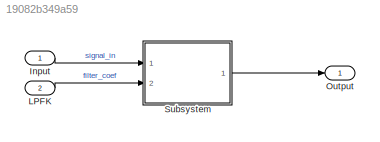
MODEL slx_19082b349a59
KIND model
BLOCK [Inport] Input
  IconDisplay = Port number
BLOCK [Inport] LPFK
  IconDisplay = Port number
  Port = 2
BLOCK [Outport] Output
  IconDisplay = Port number
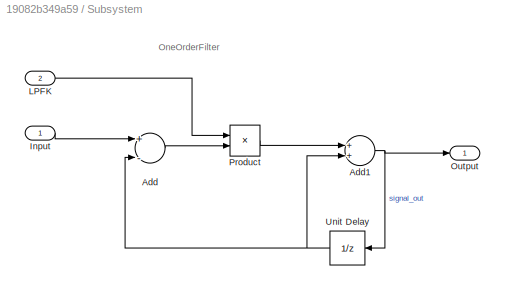
BLOCK [SubSystem] Subsystem
  FunctionWithSeparateData = off
  MaskHideContents = off
  MinAlgLoopOccurrences = off
  Opaque = off
  Ports = [2, 1]
  PropExecContextOutsideSubsystem = off
  RTWFcnName = my_filter
  RTWFcnNameOpts = User specified
  RTWFileName = algorithm_file
  RTWFileNameOpts = User specified
  RTWSystemCode = Reusable function
  RequestExecContextInheritance = off
  TreatAsAtomicUnit = on
BLOCK [Sum] Subsystem/Add
  InputSameDT = off
  Inputs = +-
  OutDataTypeStr = Inherit: Inherit via internal rule
  Ports = [2, 1]
  SaturateOnIntegerOverflow = off
BLOCK [Sum] Subsystem/Add1
  InputSameDT = off
  OutDataTypeStr = Inherit: Inherit via internal rule
  Ports = [2, 1]
  SaturateOnIntegerOverflow = off
BLOCK [Inport] Subsystem/Input
  IconDisplay = Port number
BLOCK [Inport] Subsystem/LPFK
  IconDisplay = Port number
  Port = 2
BLOCK [Outport] Subsystem/Output
  IconDisplay = Port number
BLOCK [Product] Subsystem/Product
  InputSameDT = off
  OutDataTypeStr = Inherit: Inherit via internal rule
  Ports = [2, 1]
  RndMeth = Floor
  SaturateOnIntegerOverflow = off
BLOCK [UnitDelay] Subsystem/Unit Delay
  CodeGenStateStorageClass = ExportedGlobal
  InputProcessing = Elements as channels (sample based)
  SampleTime = 0.2
  StateName = signal_out_old
ANNOTATION Subsystem: OneOrderFilter
LINE Input:1 -> Subsystem:1
LINE LPFK:1 -> Subsystem:2
NET Subsystem/Add1:1 -> Subsystem/Output:1, Subsystem/Unit Delay:1
LINE Subsystem/Add:1 -> Subsystem/Product:2
LINE Subsystem/Input:1 -> Subsystem/Add:1
LINE Subsystem/LPFK:1 -> Subsystem/Product:1
LINE Subsystem/Product:1 -> Subsystem/Add1:1
NET Subsystem/Unit Delay:1 -> Subsystem/Add1:2, Subsystem/Add:2
LINE Subsystem:1 -> Output:1
note: NET lines group one-source signal fan-out (src -> all destinations, sorted); 1:1 wires keep LINE
